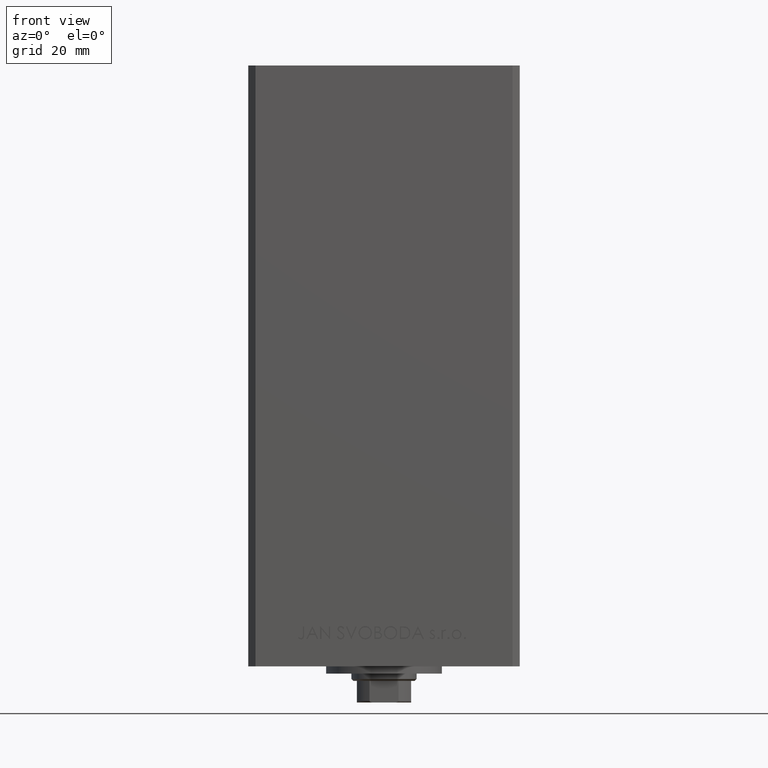
[diagram: clean part render]
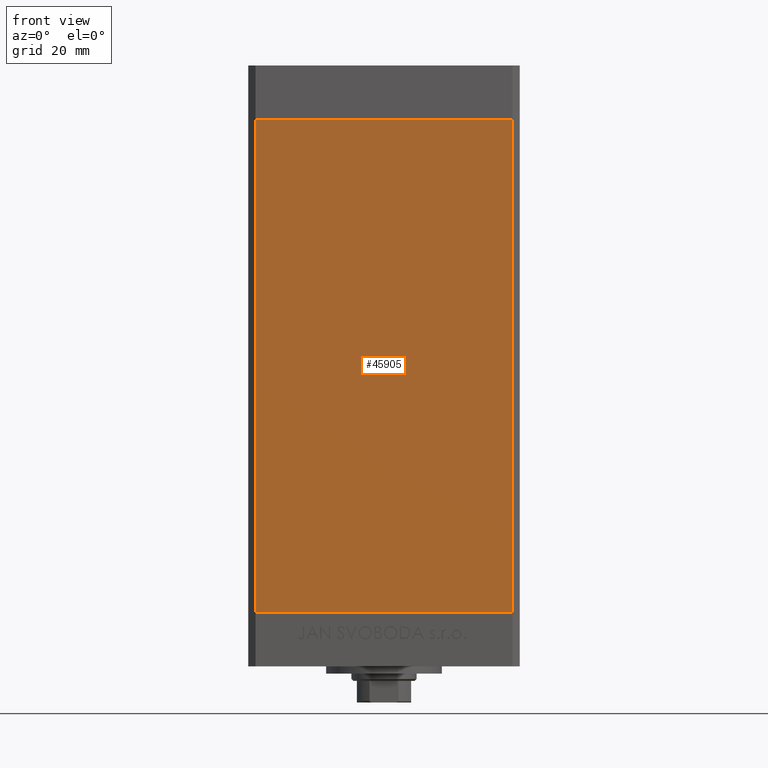
[diagram: same view with one face highlighted and labeled with its STEP entity id]
A machine part, front view. The second image highlights one B-rep face of the part: STEP entity #45905.
In plain terms, the highlighted planar face has unit normal (0, 1, 0).
Its self-contained STEP definition (entity closure, byte-faithful):
#888 = LINE ( 'NONE', #24374, #34205 ) ;
#2737 = DIRECTION ( 'NONE',  ( -0.000000000000000000, -0.000000000000000000, -1.000000000000000000 ) ) ;
#4521 = ORIENTED_EDGE ( 'NONE', *, *, #23625, .T. ) ;
#4833 = CARTESIAN_POINT ( 'NONE',  ( -35.49999999999999289, -32.50000000000000000, 0.000000000000000000 ) ) ;
#5030 = ORIENTED_EDGE ( 'NONE', *, *, #15117, .F. ) ;
#6540 = EDGE_CURVE ( 'NONE', #21465, #46654, #6899, .T. ) ;
#6563 = AXIS2_PLACEMENT_3D ( 'NONE', #47820, #48059, #32960 ) ;
#6688 = LINE ( 'NONE', #44296, #36745 ) ;
#6899 = LINE ( 'NONE', #11101, #24602 ) ;
#7579 = EDGE_CURVE ( 'NONE', #12691, #41996, #8732, .T. ) ;
#7992 = CARTESIAN_POINT ( 'NONE',  ( -35.49999999999999289, -32.50000000000000000, 136.0000000000000000 ) ) ;
#8732 = LINE ( 'NONE', #7992, #19096 ) ;
#10474 = ORIENTED_EDGE ( 'NONE', *, *, #7579, .F. ) ;
#11101 = CARTESIAN_POINT ( 'NONE',  ( -35.49999999999999289, -32.50000000000000000, 0.000000000000000000 ) ) ;
#11939 = CARTESIAN_POINT ( 'NONE',  ( -35.49999999999999289, -32.50000000000000000, 136.0000000000000000 ) ) ;
#12691 = VERTEX_POINT ( 'NONE', #11939 ) ;
#15117 = EDGE_CURVE ( 'NONE', #41996, #46654, #888, .T. ) ;
#19096 = VECTOR ( 'NONE', #23817, 1000.000000000000000 ) ;
#19167 = CARTESIAN_POINT ( 'NONE',  ( 35.49999999999999289, -32.50000000000000000, 136.0000000000000000 ) ) ;
#19651 = CARTESIAN_POINT ( 'NONE',  ( 35.49999999999999289, -32.50000000000000000, 0.000000000000000000 ) ) ;
#21465 = VERTEX_POINT ( 'NONE', #4833 ) ;
#23625 = EDGE_CURVE ( 'NONE', #12691, #21465, #6688, .T. ) ;
#23817 = DIRECTION ( 'NONE',  ( 1.000000000000000000, 0.000000000000000000, 0.000000000000000000 ) ) ;
#24374 = CARTESIAN_POINT ( 'NONE',  ( 35.49999999999999289, -32.50000000000000000, 136.0000000000000000 ) ) ;
#24602 = VECTOR ( 'NONE', #40794, 1000.000000000000000 ) ;
#25291 = FACE_OUTER_BOUND ( 'NONE', #44329, .T. ) ;
#32960 = DIRECTION ( 'NONE',  ( 0.000000000000000000, -0.000000000000000000, 1.000000000000000000 ) ) ;
#34205 = VECTOR ( 'NONE', #35265, 1000.000000000000000 ) ;
#35265 = DIRECTION ( 'NONE',  ( -0.000000000000000000, -0.000000000000000000, -1.000000000000000000 ) ) ;
#36745 = VECTOR ( 'NONE', #2737, 1000.000000000000000 ) ;
#40794 = DIRECTION ( 'NONE',  ( 1.000000000000000000, 0.000000000000000000, 0.000000000000000000 ) ) ;
#41996 = VERTEX_POINT ( 'NONE', #19167 ) ;
#44296 = CARTESIAN_POINT ( 'NONE',  ( -35.49999999999999289, -32.50000000000000000, 136.0000000000000000 ) ) ;
#44329 = EDGE_LOOP ( 'NONE', ( #48112, #5030, #10474, #4521 ) ) ;
#45905 = ADVANCED_FACE ( 'NONE', ( #25291 ), #48799, .F. ) ;
#46654 = VERTEX_POINT ( 'NONE', #19651 ) ;
#47820 = CARTESIAN_POINT ( 'NONE',  ( -35.49999999999999289, -32.50000000000000000, 136.0000000000000000 ) ) ;
#48059 = DIRECTION ( 'NONE',  ( 0.000000000000000000, 1.000000000000000000, 0.000000000000000000 ) ) ;
#48112 = ORIENTED_EDGE ( 'NONE', *, *, #6540, .T. ) ;
#48799 = PLANE ( 'NONE',  #6563 ) ;